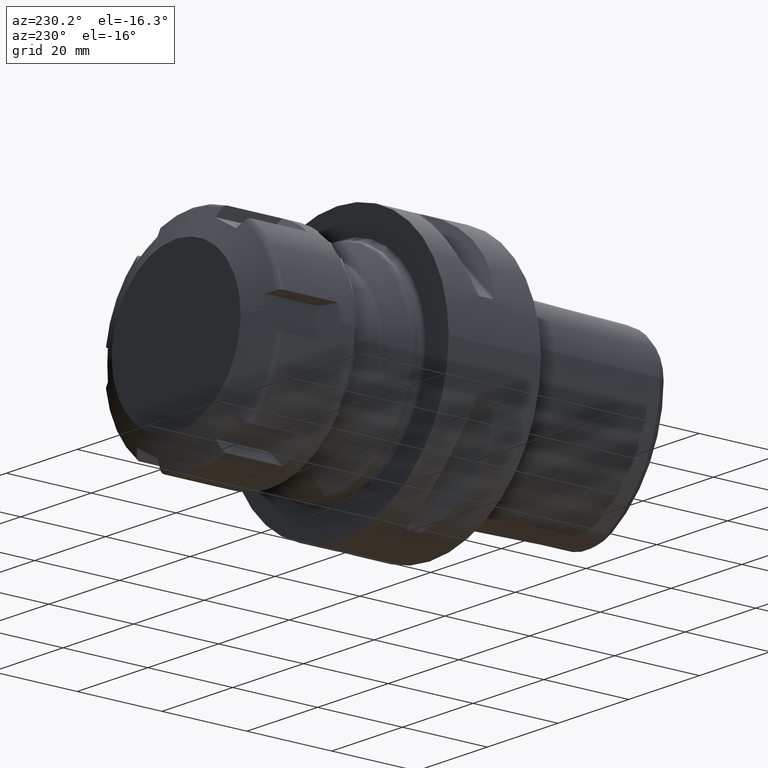
[diagram: clean part render]
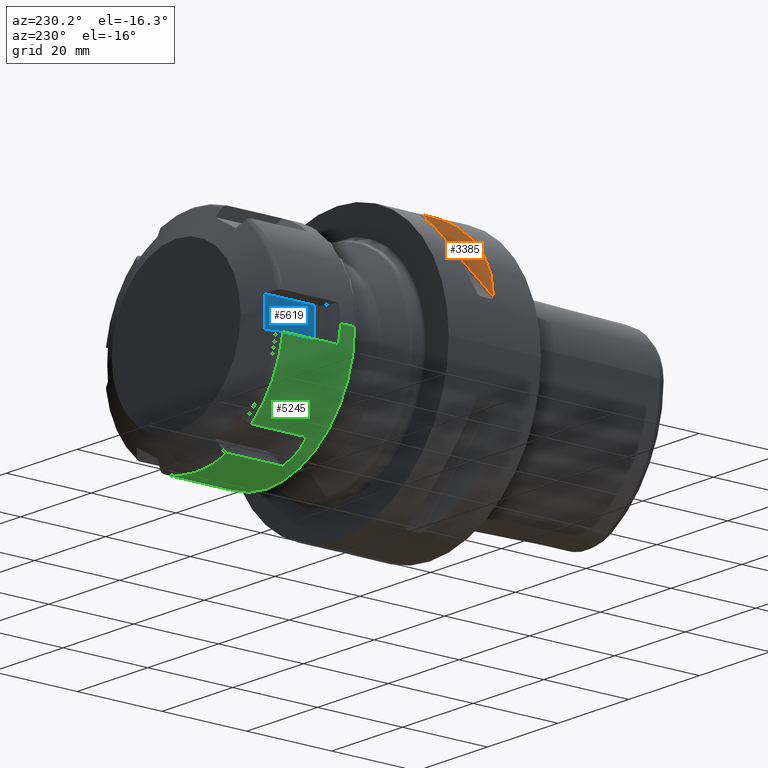
[diagram: same view with three faces highlighted in distinct colors, each labeled with its STEP entity id]
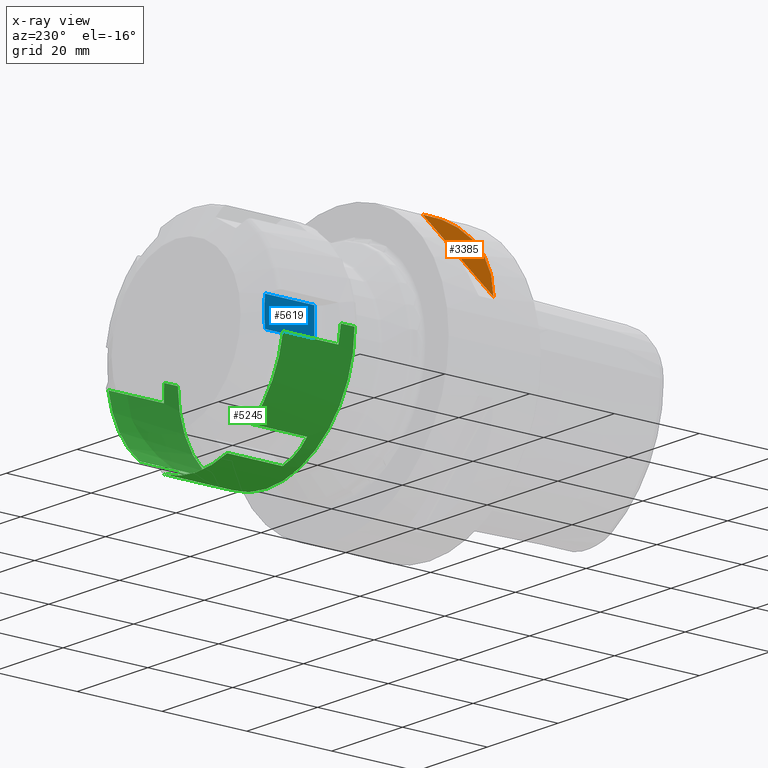
[diagram: x-ray of the same camera — body ghosted, the three highlighted faces saturated]
A machine part, auxiliary view with three faces highlighted in distinct colors.
The next image is the same camera in x-ray (body ghosted, the three faces saturated) — at least one of them is partly hidden behind the body in this view.
Their STEP definitions:

[orange] entity #3385 — the highlighted planar face has unit normal (0.3536, -0.866, -0.3536).
#1232=CARTESIAN_POINT('',(-2.991395484647E1,1.010566243270E1,9.869412618966E0));
#1233=CARTESIAN_POINT('',(-2.908518363459E1,9.418492943988E0,1.238139844501E1));
#1234=CARTESIAN_POINT('',(-2.691325004580E1,8.464152594070E0,1.689097893205E1));
#1235=CARTESIAN_POINT('',(-2.245973816660E1,8.008854767798E0,2.245973816660E1));
#1236=CARTESIAN_POINT('',(-1.689097893205E1,8.464152594070E0,2.691325004580E1));
#1237=CARTESIAN_POINT('',(-1.238139844501E1,9.418492943988E0,2.908518363459E1));
#1238=CARTESIAN_POINT('',(-9.869412618966E0,1.010566243270E1,2.991395484647E1));
#1390=DIRECTION('',(7.071067811865E-1,0.E0,7.071067811865E-1));
#1391=VECTOR('',#1390,2.834726346969E1);
#1392=CARTESIAN_POINT('',(-2.991395484647E1,1.010566243270E1,9.869412618966E0));
#1393=LINE('',#1392,#1391);
#1962=CARTESIAN_POINT('',(-2.991395484647E1,1.010566243270E1,9.869412618966E0));
#1963=CARTESIAN_POINT('',(-9.869412618966E0,1.010566243270E1,2.991395484647E1));
#1964=VERTEX_POINT('',#1962);
#1965=VERTEX_POINT('',#1963);
#3376=CARTESIAN_POINT('',(1.945255215891E1,1.025E1,5.888236623375E1));
#3377=DIRECTION('',(3.535533905933E-1,-8.660254037844E-1,-3.535533905933E-1));
#3378=DIRECTION('',(-6.123724356958E-1,-5.E-1,6.123724356958E-1));
#3379=AXIS2_PLACEMENT_3D('',#3376,#3377,#3378);
#3380=PLANE('',#3379);
#3381=ORIENTED_EDGE('',*,*,#3368,.T.);
#3382=ORIENTED_EDGE('',*,*,#3268,.F.);
#3383=EDGE_LOOP('',(#3381,#3382));
#3384=FACE_OUTER_BOUND('',#3383,.F.);
#3385=ADVANCED_FACE('',(#3384),#3380,.F.);
#1239=B_SPLINE_CURVE_WITH_KNOTS('',3,(#1232,#1233,#1234,#1235,#1236,#1237,
#1238),.UNSPECIFIED.,.F.,.F.,(4,1,1,1,4),(0.E0,2.5E-1,5.E-1,7.5E-1,1.E0),
.UNSPECIFIED.);
#3268=EDGE_CURVE('',#1964,#1965,#1239,.T.);
#3368=EDGE_CURVE('',#1964,#1965,#1393,.T.);

[blue] entity #5619 — the highlighted planar face has unit normal (1, 0, 0).
#4363=CARTESIAN_POINT('',(2.007435737753E1,2.22E1,-3.35E0));
#4364=CARTESIAN_POINT('',(2.010642291935E1,2.22E1,-2.977782663007E0));
#4365=CARTESIAN_POINT('',(2.016009585532E1,2.22E1,-2.233360618265E0));
#4366=CARTESIAN_POINT('',(2.020864465134E1,2.22E1,-1.116836975823E0));
#4367=CARTESIAN_POINT('',(2.021946643670E1,2.22E1,-3.722962341462E-1));
#4368=CARTESIAN_POINT('',(2.021946643670E1,2.22E1,0.E0));
#4709=CARTESIAN_POINT('',(2.007435737753E1,2.22E1,3.35E0));
#4715=CARTESIAN_POINT('',(2.021946643670E1,2.22E1,0.E0));
#4716=CARTESIAN_POINT('',(2.021946643670E1,2.22E1,3.723412104007E-1));
#4717=CARTESIAN_POINT('',(2.020864224929E1,2.22E1,1.116942255784E0));
#4718=CARTESIAN_POINT('',(2.016008769471E1,2.22E1,2.233495806650E0));
#4719=CARTESIAN_POINT('',(2.010641792581E1,2.22E1,2.977840628173E0));
#4720=CARTESIAN_POINT('',(2.007435737753E1,2.22E1,3.35E0));
#4863=CARTESIAN_POINT('',(8.408376618407E0,2.22E1,-3.35E0));
#4869=DIRECTION('',(-1.E0,0.E0,0.E0));
#4870=VECTOR('',#4869,1.166598075912E1);
#4871=CARTESIAN_POINT('',(2.007435737753E1,2.22E1,-3.35E0));
#4872=LINE('',#4871,#4870);
#4873=DIRECTION('',(0.E0,0.E0,-1.E0));
#4874=VECTOR('',#4873,6.7E0);
#4875=CARTESIAN_POINT('',(8.408376618407E0,2.22E1,3.35E0));
#4876=LINE('',#4875,#4874);
#4877=DIRECTION('',(-1.E0,0.E0,0.E0));
#4878=VECTOR('',#4877,1.166598075912E1);
#4879=CARTESIAN_POINT('',(2.007435737753E1,2.22E1,3.35E0));
#4880=LINE('',#4879,#4878);
#4997=VERTEX_POINT('',#4709);
#4999=VERTEX_POINT('',#4715);
#5000=VERTEX_POINT('',#4363);
#5009=VERTEX_POINT('',#4863);
#5010=CARTESIAN_POINT('',(8.408376618407E0,2.22E1,3.35E0));
#5011=VERTEX_POINT('',#5010);
#5606=CARTESIAN_POINT('',(2.25E1,2.22E1,3.35E0));
#5607=DIRECTION('',(0.E0,-1.E0,0.E0));
#5608=DIRECTION('',(0.E0,0.E0,-1.E0));
#5609=AXIS2_PLACEMENT_3D('',#5606,#5607,#5608);
#5610=PLANE('',#5609);
#5611=ORIENTED_EDGE('',*,*,#5583,.T.);
#5612=ORIENTED_EDGE('',*,*,#5601,.F.);
#5613=ORIENTED_EDGE('',*,*,#5135,.T.);
#5614=ORIENTED_EDGE('',*,*,#5406,.T.);
#5616=ORIENTED_EDGE('',*,*,#5615,.T.);
#5617=EDGE_LOOP('',(#5611,#5612,#5613,#5614,#5616));
#5618=FACE_OUTER_BOUND('',#5617,.F.);
#5619=ADVANCED_FACE('',(#5618),#5610,.F.);
#4369=B_SPLINE_CURVE_WITH_KNOTS('',3,(#4363,#4364,#4365,#4366,#4367,#4368),
.UNSPECIFIED.,.F.,.F.,(4,1,1,4),(0.E0,3.333333333333E-1,6.666666666667E-1,1.E0),
.UNSPECIFIED.);
#4721=B_SPLINE_CURVE_WITH_KNOTS('',3,(#4715,#4716,#4717,#4718,#4719,#4720),
.UNSPECIFIED.,.F.,.F.,(4,1,1,4),(0.E0,3.333333333333E-1,6.666666666667E-1,1.E0),
.UNSPECIFIED.);
#5135=EDGE_CURVE('',#5000,#4999,#4369,.T.);
#5406=EDGE_CURVE('',#4999,#4997,#4721,.T.);
#5583=EDGE_CURVE('',#5011,#5009,#4876,.T.);
#5601=EDGE_CURVE('',#5000,#5009,#4872,.T.);
#5615=EDGE_CURVE('',#4997,#5011,#4880,.T.);

[green] entity #5245 — the highlighted cylindrical surface (partial cylindrical patch) has radius 25 mm, axis along (0, 1, 0).
#4409=CARTESIAN_POINT('',(4.807079781803E0,8.904151986948E0,-2.336056671815E1));
#4410=CARTESIAN_POINT('',(4.381591242552E0,1.140843500467E1,-2.240603008909E1));
#4411=CARTESIAN_POINT('',(4.381591242552E0,1.369997375277E1,-2.108300957602E1));
#4412=CARTESIAN_POINT('',(4.807079781803E0,1.577876823125E1,-1.939150517893E1));
#4414=DIRECTION('',(1.E0,0.E0,0.E0));
#4415=VECTOR('',#4414,1.307411806468E1);
#4416=CARTESIAN_POINT('',(4.807079781803E0,1.577876823125E1,-1.939150517893E1));
#4417=LINE('',#4416,#4415);
#4418=CARTESIAN_POINT('',(1.788119784648E1,0.E0,0.E0));
#4419=DIRECTION('',(-1.E0,0.E0,0.E0));
#4420=DIRECTION('',(0.E0,9.873168087279E-1,-1.587624615689E-1));
#4421=AXIS2_PLACEMENT_3D('',#4418,#4419,#4420);
#4423=DIRECTION('',(1.E0,0.E0,0.E0));
#4424=VECTOR('',#4423,1.307411806468E1);
#4425=CARTESIAN_POINT('',(4.807079781803E0,2.468292021820E1,-3.969061539222E0));
#4426=LINE('',#4425,#4424);
#4427=CARTESIAN_POINT('',(4.807079781803E0,2.468292021820E1,-3.969061539222E0));
#4428=CARTESIAN_POINT('',(4.729701493378E0,2.476029850662E1,-3.487859093522E0));
#4429=CARTESIAN_POINT('',(4.609219197891E0,2.488166969100E1,-2.550817383639E0));
#4430=CARTESIAN_POINT('',(4.504536623461E0,2.498235226543E1,-1.228026509027E0));
#4431=CARTESIAN_POINT('',(4.5E0,2.499666666667E1,-4.003888699202E-1));
#4432=CARTESIAN_POINT('',(4.5E0,2.499666666667E1,1.417951640115E-14));
#4434=DIRECTION('',(-9.999994740307E-1,1.025640486187E-3,1.577133168835E-12));
#4435=VECTOR('',#4434,3.250001709401E0);
#4436=CARTESIAN_POINT('',(4.5E0,2.499666666667E1,1.417951640115E-14));
#4437=LINE('',#4436,#4435);
#4438=CARTESIAN_POINT('',(1.25E0,0.E0,0.E0));
#4439=DIRECTION('',(-1.E0,0.E0,0.E0));
#4440=DIRECTION('',(0.E0,1.E0,0.E0));
#4441=AXIS2_PLACEMENT_3D('',#4438,#4439,#4440);
#4443=DIRECTION('',(-9.999994740307E-1,-1.025640486184E-3,-1.578379367537E-12));
#4444=VECTOR('',#4443,3.250001709401E0);
#4445=CARTESIAN_POINT('',(4.5E0,-2.499666666667E1,-1.240051271650E-14));
#4446=LINE('',#4445,#4444);
#4447=CARTESIAN_POINT('',(4.5E0,-2.499666666667E1,-1.240051271650E-14));
#4448=CARTESIAN_POINT('',(4.5E0,-2.499666666667E1,-1.451714455632E-1));
#4449=CARTESIAN_POINT('',(4.487872521708E0,-2.499903346707E1,
-4.463428212676E-1));
#4450=CARTESIAN_POINT('',(4.506996588005E0,-2.498383245127E1,
-9.338081408938E-1));
#4451=CARTESIAN_POINT('',(4.530046438305E0,-2.495973141581E1,
-1.454059244478E0));
#4452=CARTESIAN_POINT('',(4.569007848129E0,-2.492105169613E1,
-2.013026454191E0));
#4453=CARTESIAN_POINT('',(4.624405857984E0,-2.486557811087E1,
-2.614252934544E0));
#4454=CARTESIAN_POINT('',(4.700654693787E0,-2.478934988654E1,
-3.262138709532E0));
#4455=CARTESIAN_POINT('',(4.768334245703E0,-2.472166575430E1,
-3.728109624791E0));
#4456=CARTESIAN_POINT('',(4.807079781803E0,-2.468292021820E1,
-3.969061539222E0));
#4458=DIRECTION('',(1.E0,0.E0,0.E0));
#4459=VECTOR('',#4458,1.307411806468E1);
#4460=CARTESIAN_POINT('',(4.807079781803E0,-2.468292021820E1,
-3.969061539222E0));
#4461=LINE('',#4460,#4459);
#4462=CARTESIAN_POINT('',(1.788119784648E1,0.E0,0.E0));
#4463=DIRECTION('',(-1.E0,0.E0,0.E0));
#4464=DIRECTION('',(0.E0,-6.311507292499E-1,-7.756602071573E-1));
#4465=AXIS2_PLACEMENT_3D('',#4462,#4463,#4464);
#4467=DIRECTION('',(1.E0,0.E0,0.E0));
#4468=VECTOR('',#4467,1.307411806468E1);
#4469=CARTESIAN_POINT('',(4.807079781803E0,-1.577876823125E1,
-1.939150517893E1));
#4470=LINE('',#4469,#4468);
#4471=CARTESIAN_POINT('',(4.807079781803E0,-1.577876823125E1,
-1.939150517893E1));
#4472=CARTESIAN_POINT('',(4.381591242552E0,-1.369997375277E1,
-2.108300957602E1));
#4473=CARTESIAN_POINT('',(4.381591242552E0,-1.140843500467E1,
-2.240603008909E1));
#4474=CARTESIAN_POINT('',(4.807079781803E0,-8.904151986948E0,
-2.336056671815E1));
#4476=DIRECTION('',(1.E0,0.E0,0.E0));
#4477=VECTOR('',#4476,1.307411806468E1);
#4478=CARTESIAN_POINT('',(4.807079781803E0,-8.904151986948E0,
-2.336056671815E1));
#4479=LINE('',#4478,#4477);
#4480=CARTESIAN_POINT('',(1.788119784648E1,0.E0,0.E0));
#4481=DIRECTION('',(-1.E0,0.E0,0.E0));
#4482=DIRECTION('',(0.E0,3.561660794779E-1,-9.344226687262E-1));
#4483=AXIS2_PLACEMENT_3D('',#4480,#4481,#4482);
#4485=DIRECTION('',(1.E0,0.E0,0.E0));
#4486=VECTOR('',#4485,1.307411806468E1);
#4487=CARTESIAN_POINT('',(4.807079781803E0,8.904151986948E0,-2.336056671815E1));
#4488=LINE('',#4487,#4486);
#4555=CARTESIAN_POINT('',(1.788119784648E1,-1.577876823125E1,
-1.939150517893E1));
#4575=CARTESIAN_POINT('',(1.788119784648E1,-2.468292021820E1,
-3.969061539222E0));
#4586=CARTESIAN_POINT('',(1.788119784648E1,1.577876823125E1,-1.939150517893E1));
#4588=CARTESIAN_POINT('',(1.788119784648E1,2.468292021820E1,-3.969061539222E0));
#4599=CARTESIAN_POINT('',(1.788119784648E1,8.904151986948E0,-2.336056671815E1));
#4619=CARTESIAN_POINT('',(1.788119784648E1,-8.904151986948E0,
-2.336056671815E1));
#4993=CARTESIAN_POINT('',(1.25E0,2.5E1,0.E0));
#4994=CARTESIAN_POINT('',(1.25E0,-2.5E1,0.E0));
#4995=VERTEX_POINT('',#4993);
#4996=VERTEX_POINT('',#4994);
#5003=VERTEX_POINT('',#4588);
#5006=CARTESIAN_POINT('',(4.807079781803E0,2.468292021820E1,-3.969061539222E0));
#5007=VERTEX_POINT('',#5006);
#5048=VERTEX_POINT('',#4575);
#5052=CARTESIAN_POINT('',(4.807079781803E0,-2.468292021820E1,
-3.969061539222E0));
#5053=VERTEX_POINT('',#5052);
#5063=VERTEX_POINT('',#4619);
#5064=VERTEX_POINT('',#4555);
#5065=CARTESIAN_POINT('',(4.807079781803E0,-8.904151986948E0,
-2.336056671815E1));
#5066=VERTEX_POINT('',#5065);
#5067=CARTESIAN_POINT('',(4.807079781803E0,-1.577876823125E1,
-1.939150517893E1));
#5068=VERTEX_POINT('',#5067);
#5078=VERTEX_POINT('',#4586);
#5079=VERTEX_POINT('',#4599);
#5080=CARTESIAN_POINT('',(4.807079781803E0,1.577876823125E1,-1.939150517893E1));
#5081=VERTEX_POINT('',#5080);
#5082=CARTESIAN_POINT('',(4.807079781803E0,8.904151986948E0,-2.336056671815E1));
#5083=VERTEX_POINT('',#5082);
#5089=CARTESIAN_POINT('',(4.5E0,-2.499666666667E1,-1.240051271650E-14));
#5090=VERTEX_POINT('',#5089);
#5091=CARTESIAN_POINT('',(4.5E0,2.499666666667E1,1.417951640115E-14));
#5092=VERTEX_POINT('',#5091);
#5209=CARTESIAN_POINT('',(-1.125E0,0.E0,0.E0));
#5210=DIRECTION('',(1.E0,0.E0,0.E0));
#5211=DIRECTION('',(0.E0,-1.E0,0.E0));
#5212=AXIS2_PLACEMENT_3D('',#5209,#5210,#5211);
#5213=CYLINDRICAL_SURFACE('',#5212,2.5E1);
#5214=ORIENTED_EDGE('',*,*,#5203,.T.);
#5215=ORIENTED_EDGE('',*,*,#5156,.T.);
#5217=ORIENTED_EDGE('',*,*,#5216,.F.);
#5219=ORIENTED_EDGE('',*,*,#5218,.F.);
#5221=ORIENTED_EDGE('',*,*,#5220,.T.);
#5223=ORIENTED_EDGE('',*,*,#5222,.T.);
#5225=ORIENTED_EDGE('',*,*,#5224,.T.);
#5227=ORIENTED_EDGE('',*,*,#5226,.F.);
#5229=ORIENTED_EDGE('',*,*,#5228,.T.);
#5231=ORIENTED_EDGE('',*,*,#5230,.T.);
#5233=ORIENTED_EDGE('',*,*,#5232,.F.);
#5235=ORIENTED_EDGE('',*,*,#5234,.F.);
#5237=ORIENTED_EDGE('',*,*,#5236,.T.);
#5239=ORIENTED_EDGE('',*,*,#5238,.T.);
#5241=ORIENTED_EDGE('',*,*,#5240,.F.);
#5242=ORIENTED_EDGE('',*,*,#5186,.F.);
#5243=EDGE_LOOP('',(#5214,#5215,#5217,#5219,#5221,#5223,#5225,#5227,#5229,#5231,
#5233,#5235,#5237,#5239,#5241,#5242));
#5244=FACE_OUTER_BOUND('',#5243,.F.);
#5245=ADVANCED_FACE('',(#5244),#5213,.T.);
#4413=B_SPLINE_CURVE_WITH_KNOTS('',3,(#4409,#4410,#4411,#4412),.UNSPECIFIED.,
.F.,.F.,(4,4),(0.E0,1.E0),.UNSPECIFIED.);
#4422=CIRCLE('',#4421,2.5E1);
#4433=B_SPLINE_CURVE_WITH_KNOTS('',3,(#4427,#4428,#4429,#4430,#4431,#4432),
.UNSPECIFIED.,.F.,.F.,(4,1,1,4),(0.E0,3.333333333333E-1,6.666666666667E-1,1.E0),
.UNSPECIFIED.);
#4442=CIRCLE('',#4441,2.5E1);
#4457=B_SPLINE_CURVE_WITH_KNOTS('',3,(#4447,#4448,#4449,#4450,#4451,#4452,#4453,
#4454,#4455,#4456),.UNSPECIFIED.,.F.,.F.,(4,1,1,1,1,1,1,4),(0.E0,
1.428571428571E-1,2.857142857143E-1,4.285714285714E-1,5.714285714286E-1,
7.142857142857E-1,8.571428571429E-1,1.E0),.UNSPECIFIED.);
#4466=CIRCLE('',#4465,2.5E1);
#4475=B_SPLINE_CURVE_WITH_KNOTS('',3,(#4471,#4472,#4473,#4474),.UNSPECIFIED.,
.F.,.F.,(4,4),(0.E0,1.E0),.UNSPECIFIED.);
#4484=CIRCLE('',#4483,2.5E1);
#5156=EDGE_CURVE('',#5081,#5078,#4417,.T.);
#5186=EDGE_CURVE('',#5083,#5079,#4488,.T.);
#5203=EDGE_CURVE('',#5083,#5081,#4413,.T.);
#5216=EDGE_CURVE('',#5003,#5078,#4422,.T.);
#5218=EDGE_CURVE('',#5007,#5003,#4426,.T.);
#5220=EDGE_CURVE('',#5007,#5092,#4433,.T.);
#5222=EDGE_CURVE('',#5092,#4995,#4437,.T.);
#5224=EDGE_CURVE('',#4995,#4996,#4442,.T.);
#5226=EDGE_CURVE('',#5090,#4996,#4446,.T.);
#5228=EDGE_CURVE('',#5090,#5053,#4457,.T.);
#5230=EDGE_CURVE('',#5053,#5048,#4461,.T.);
#5232=EDGE_CURVE('',#5064,#5048,#4466,.T.);
#5234=EDGE_CURVE('',#5068,#5064,#4470,.T.);
#5236=EDGE_CURVE('',#5068,#5066,#4475,.T.);
#5238=EDGE_CURVE('',#5066,#5063,#4479,.T.);
#5240=EDGE_CURVE('',#5079,#5063,#4484,.T.);